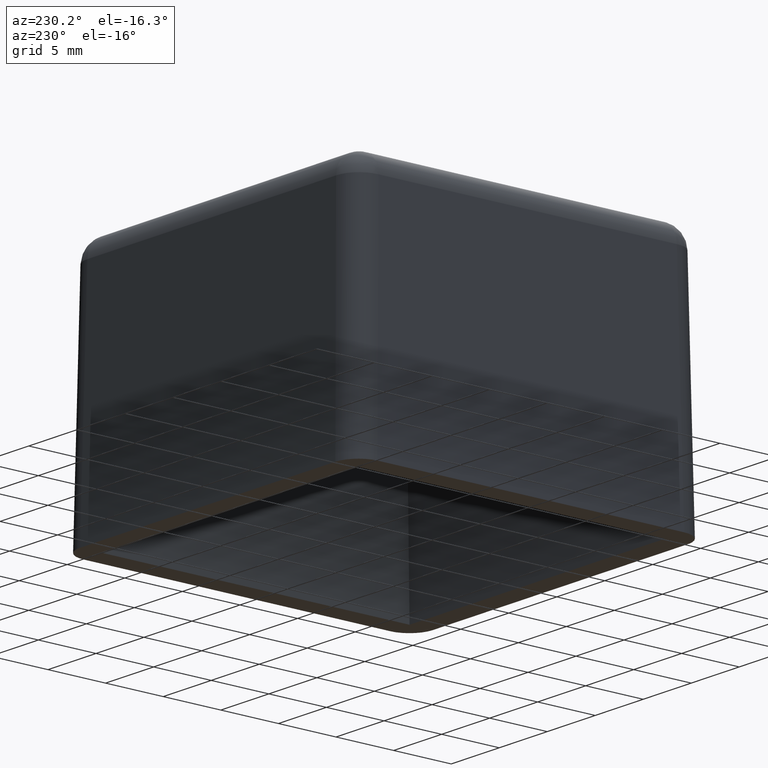
[diagram: clean part render]
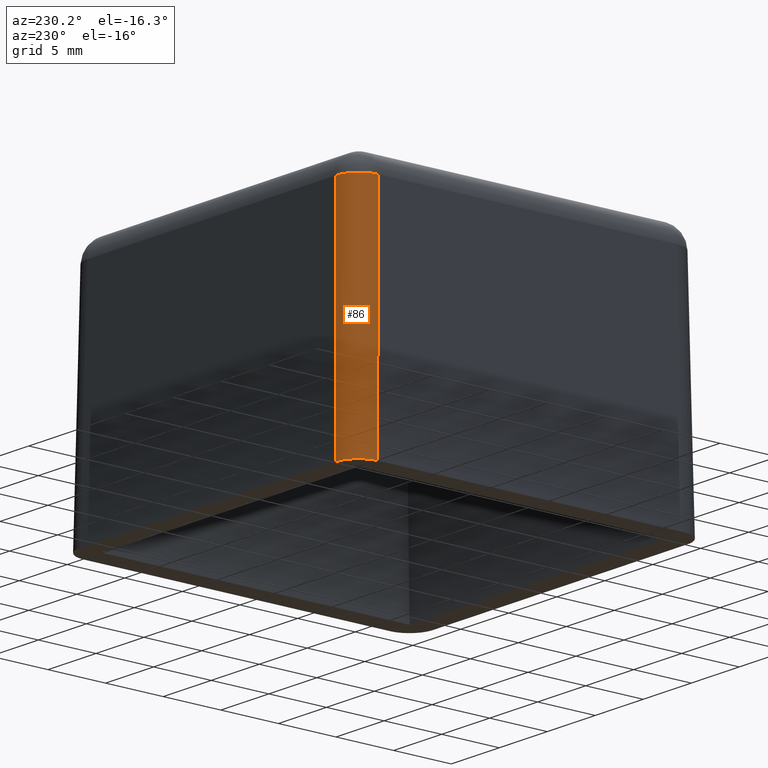
[diagram: same view with one face highlighted and labeled with its STEP entity id]
A machine part, auxiliary view. The second image highlights one B-rep face of the part: STEP entity #86.
In plain terms, the highlighted cylindrical surface (edge-blend (fillet) strip) has radius 2 mm, axis along (0.0174, -0.0174, 0.9997).
Its self-contained STEP definition (entity closure, byte-faithful):
#86 = ADVANCED_FACE( '', ( #190 ), #191, .T. );
#190 = FACE_OUTER_BOUND( '', #371, .T. );
#191 = CYLINDRICAL_SURFACE( '', #372, 2.00000000000000 );
#371 = EDGE_LOOP( '', ( #671, #672, #673, #674 ) );
#372 = AXIS2_PLACEMENT_3D( '', #675, #676, #677 );
#671 = ORIENTED_EDGE( '', *, *, #1280, .F. );
#672 = ORIENTED_EDGE( '', *, *, #1301, .T. );
#673 = ORIENTED_EDGE( '', *, *, #1302, .F. );
#674 = ORIENTED_EDGE( '', *, *, #1303, .F. );
#675 = CARTESIAN_POINT( '', ( -13.2915959958064, 13.2915959958064, 0.464011342212876 ) );
#676 = DIRECTION( '', ( 0.0174497491606827, -0.0174497491606827, 0.999695459881888 ) );
#677 = DIRECTION( '', ( -0.999847695156391, 0.000000000000000, 0.0174524064372835 ) );
#1280 = EDGE_CURVE( '', #1537, #1539, #1540, .F. );
#1301 = EDGE_CURVE( '', #1537, #1571, #1572, .T. );
#1302 = EDGE_CURVE( '', #1573, #1571, #1574, .T. );
#1303 = EDGE_CURVE( '', #1539, #1573, #1575, .F. );
#1537 = VERTEX_POINT( '', #1984 );
#1539 = VERTEX_POINT( '', #1987 );
#1540 = LINE( '', #1988, #1989 );
#1571 = VERTEX_POINT( '', #2079 );
#1572 = CIRCLE( '', #2080, 2.00000000000000 );
#1573 = VERTEX_POINT( '', #2081 );
#1574 = LINE( '', #2082, #2083 );
#1575 = ELLIPSE( '', #2084, 2.00060926578210, 2.00000000000000 );
#1984 = CARTESIAN_POINT( '', ( -14.9502894356606, 12.9505940453478, 20.0349048128746 ) );
#1987 = CARTESIAN_POINT( '', ( -15.3000000000000, 13.3003046096872, 0.000000000000000 ) );
#1988 = CARTESIAN_POINT( '', ( -15.2912913861192, 13.2915959958064, 0.498916155087443 ) );
#1989 = VECTOR( '', #2452, 1000.00000000000 );
#2079 = CARTESIAN_POINT( '', ( -12.9505940453478, 14.9502894356606, 20.0349048128746 ) );
#2080 = AXIS2_PLACEMENT_3D( '', #2464, #2465, #2466 );
#2081 = CARTESIAN_POINT( '', ( -13.3003046096872, 15.3000000000000, 0.000000000000000 ) );
#2082 = CARTESIAN_POINT( '', ( -13.3009135044270, 15.3006088947398, -0.0348835562801318 ) );
#2083 = VECTOR( '', #2467, 1000.00000000000 );
#2084 = AXIS2_PLACEMENT_3D( '', #2468, #2469, #2470 );
#2452 = DIRECTION( '', ( 0.0174497491606827, -0.0174497491606827, 0.999695459881887 ) );
#2464 = CARTESIAN_POINT( '', ( -12.9505940453478, 12.9505940453478, 20.0000000000000 ) );
#2465 = DIRECTION( '', ( -0.0174497491606827, 0.0174497491606827, -0.999695459881888 ) );
#2466 = DIRECTION( '', ( -0.999847695156391, 0.000000000000000, 0.0174524064372835 ) );
#2467 = DIRECTION( '', ( 0.0174497491606827, -0.0174497491606827, 0.999695459881887 ) );
#2468 = CARTESIAN_POINT( '', ( -13.2996953439122, 13.2996953439122, 0.000000000000000 ) );
#2469 = DIRECTION( '', ( 0.000000000000000, 0.000000000000000, 1.00000000000000 ) );
#2470 = DIRECTION( '', ( -0.707106781186547, 0.707106781186547, 0.000000000000000 ) );